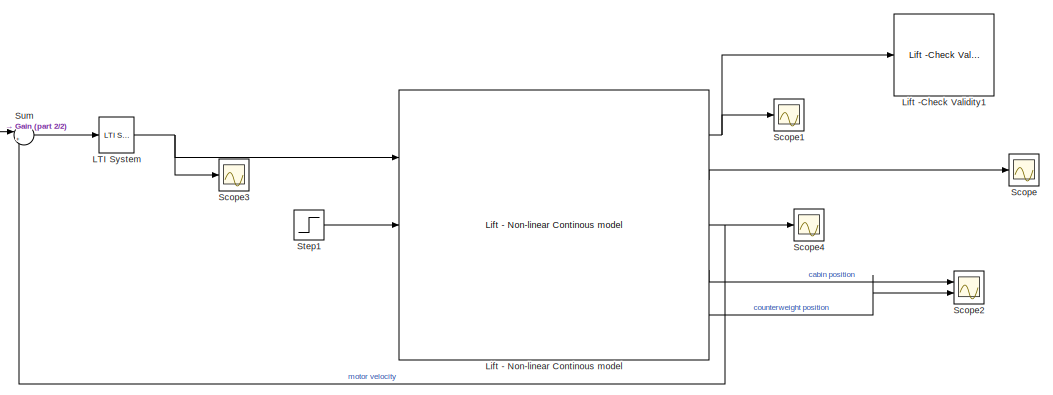
[diagram: root canvas - part 1/2, top right region]
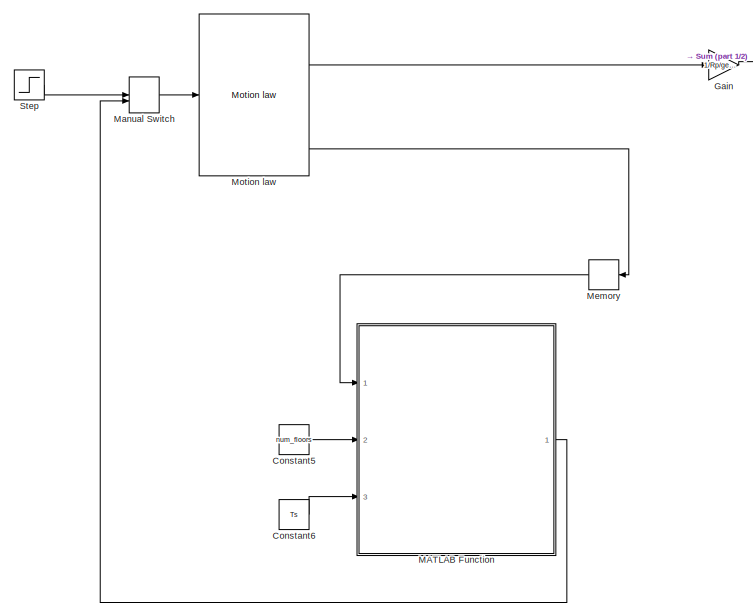
[diagram: root canvas - part 2/2, left side, full height]
MODEL slx_b3fd6842635c
KIND model
CONFIG AbsTol = auto
CONFIG EnableMultiTasking = off
CONFIG FixedStep = auto
CONFIG MaxStep = 1e-3
CONFIG MinStep = auto
CONFIG RelTol = 1e-3
CONFIG SampleTimeConstraint = Unconstrained
CONFIG SolverName = VariableStepAuto
CONFIG StartTime = 0.0
CONFIG StopTime = 100
BLOCK [Constant] Constant5
  Value = num_floors
BLOCK [Constant] Constant6
  Value = Ts
BLOCK [Gain] Gain
  Gain = 1/Rp/gearbox
BLOCK [Reference] LTI System  REF=cstblocks/LTI System
  Ports = [1, 1]
  SourceBlock = cstblocks/LTI System
  SourceProductBaseCode = CT
  SourceType = LTI Block
BLOCK [Reference] Lift - Non-linear Continous model  REF=LumpedParameterLiftModels/Lift - Non-linear Continous model
  Ports = [3, 5]
  SourceBlock = LumpedParameterLiftModels/Lift - Non-linear Continous model
BLOCK [Reference] Lift -Check Validity1  REF=LumpedParameterLiftModels/Lift -Check Validity
  Ports = [1]
  SourceBlock = LumpedParameterLiftModels/Lift -Check Validity
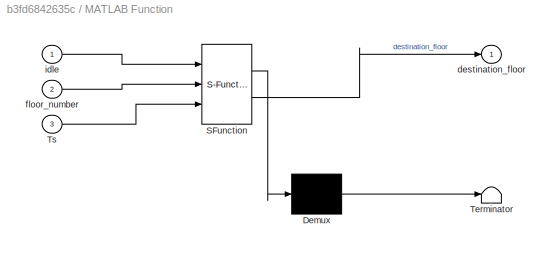
BLOCK [SubSystem] MATLAB Function
  ErrorFcn = Stateflow.Translate.translate
  PermitHierarchicalResolution = ExplicitOnly
  Ports = [3, 1]
  RequestExecContextInheritance = off
  SFBlockType = MATLAB Function
  SystemSampleTime = Ts
  TreatAsAtomicUnit = on
BLOCK [Demux] MATLAB Function/ Demux 
  Outputs = 1
  Ports = [1, 1]
BLOCK [S-Function] MATLAB Function/ SFunction 
  EnableBusSupport = on
  FunctionName = sf_sfun
  PortCounts = [3 2]
  Ports = [3, 2]
  SFcnIsStateOwnerBlock = off
  SFunctionDeploymentMode = off
  Tag = Stateflow S-Function 2
BLOCK [Terminator] MATLAB Function/ Terminator 
BLOCK [Inport] MATLAB Function/Ts
  Port = 3
BLOCK [Outport] MATLAB Function/destination_floor
BLOCK [Inport] MATLAB Function/floor_number
  Port = 2
BLOCK [Inport] MATLAB Function/idle
BLOCK [ManualSwitch] Manual Switch
  CurrentSetting = 0
BLOCK [Memory] Memory
BLOCK [Reference] Motion law  REF=LumpedParameterLiftModels/Motion law
  Ports = [1, 5]
  SourceBlock = LumpedParameterLiftModels/Motion law
  SourceType = Lift motion law generator
BLOCK [Scope] Scope
  Floating = off
  NumInputPorts = 1
  Ports = [1]
  ScopeSpecificationString = Simulink.scopes.TimeScopeBlockCfg('CurrentConfiguration', extmgr.ConfigurationSet(extmgr.Configuration('Core','General UI',true),extmgr.Configuration('Core','Source UI',true),extmgr.Configuration('Sources','WiredSimulink',true),extmgr.Configuration('Visuals','Time Domain',true,'SerializedDisplays',{struct('MinYLimReal','-152.12342','MaxYLimReal','1369.11078','YLabelReal','','MinYLimMag',' 0.00000'...<+1441ch>
BLOCK [Scope] Scope1
  Floating = off
  NumInputPorts = 1
  Ports = [1]
  ScopeSpecificationString = Simulink.scopes.TimeScopeBlockCfg('CurrentConfiguration', extmgr.ConfigurationSet(extmgr.Configuration('Core','General UI',true),extmgr.Configuration('Core','Source UI',true),extmgr.Configuration('Sources','WiredSimulink',true,'DataLoggingVariableName','ScopeData1'),extmgr.Configuration('Visuals','Time Domain',true,'SerializedDisplays',{struct('MinYLimReal','-283.34091','MaxYLimReal','429.14365','...<+1901ch>
BLOCK [Scope] Scope2
  Floating = off
  NumInputPorts = 2
  Ports = [2]
  ScopeSpecificationString = Simulink.scopes.TimeScopeBlockCfg('CurrentConfiguration', extmgr.ConfigurationSet(extmgr.Configuration('Core','General UI',true),extmgr.Configuration('Core','Source UI',true),extmgr.Configuration('Sources','WiredSimulink',true,'DataLoggingVariableName','ScopeData2'),extmgr.Configuration('Visuals','Time Domain',true,'SerializedDisplays',{struct('MinYLimReal','-7.68055','MaxYLimReal','69.03741','YLa...<+2052ch>
BLOCK [Scope] Scope3
  Floating = off
  NumInputPorts = 1
  Ports = [1]
  ScopeSpecificationString = Simulink.scopes.TimeScopeBlockCfg('CurrentConfiguration', extmgr.ConfigurationSet(extmgr.Configuration('Core','General UI',true),extmgr.Configuration('Core','Source UI',true),extmgr.Configuration('Sources','WiredSimulink',true,'DataLoggingVariableName','ScopeData1'),extmgr.Configuration('Visuals','Time Domain',true,'SerializedDisplays',{struct('MinYLimReal','-82.71018','MaxYLimReal','95.05682','YL...<+1375ch>
BLOCK [Scope] Scope4
  Floating = off
  NumInputPorts = 1
  Ports = [1]
  ScopeSpecificationString = Simulink.scopes.TimeScopeBlockCfg('CurrentConfiguration', extmgr.ConfigurationSet(extmgr.Configuration('Core','General UI',true),extmgr.Configuration('Core','Source UI',true),extmgr.Configuration('Sources','WiredSimulink',true,'DataLoggingVariableName','ScopeData2'),extmgr.Configuration('Visuals','Time Domain',true,'SerializedDisplays',{struct('MinYLimReal','-31176.0169','MaxYLimReal','30311.81851...<+1488ch>
BLOCK [Step] Step
  After = 15
  SampleTime = 0
  Time = 10
BLOCK [Step] Step1
  After = 0
  SampleTime = 0
  Time = 20
BLOCK [Sum] Sum
  Inputs = |+-
  Ports = [2, 1]
LINE Constant5:1 -> MATLAB Function:2
LINE Constant6:1 -> MATLAB Function:3
LINE Gain:1 -> Sum:1
NET LTI System:1 -> Lift - Non-linear Continous model:1, Scope3:1
NET Lift - Non-linear Continous model:1 -> Lift -Check Validity1:1, Scope1:1
LINE Lift - Non-linear Continous model:2 -> Scope:1
NET Lift - Non-linear Continous model:3 -> Scope4:1, Sum:2
LINE Lift - Non-linear Continous model:4 -> Scope2:1
LINE Lift - Non-linear Continous model:5 -> Scope2:2
LINE MATLAB Function:1 -> Manual Switch:2
LINE Manual Switch:1 -> Motion law:1
LINE Memory:1 -> MATLAB Function:1
LINE Motion law:2 -> Gain:1
LINE Motion law:5 -> Memory:1
LINE Step1:1 -> Lift - Non-linear Continous model:2
LINE Step:1 -> Manual Switch:1
LINE Sum:1 -> LTI System:1
note: NET lines group one-source signal fan-out (src -> all destinations, sorted); 1:1 wires keep LINE
CHART MATLAB Function states=1 transitions=1
  STATE_LABEL 'eML_blk_kernel()'
  STATE_LABEL 'SCRIPT:\nfunction destination_floor = Random(idle,floor_number,Ts)\n\npersistent destination_floor_ state time wait_time;\nif isempty(destination_floor_)\n    destination_floor_=0;\n    state=0;\n    time=0;\n    wait_time=0;\nend\n\nif (state==0 && idle) % wait a random time\n    wait_time=25+5*rand();\n    time=0;\n    state=1;\nelseif (state==1 && time>wait_time)\n    state=2;\nelseif (state==2)\n    state=0;\nen...<+118ch>'
CHART  states=0 transitions=0
